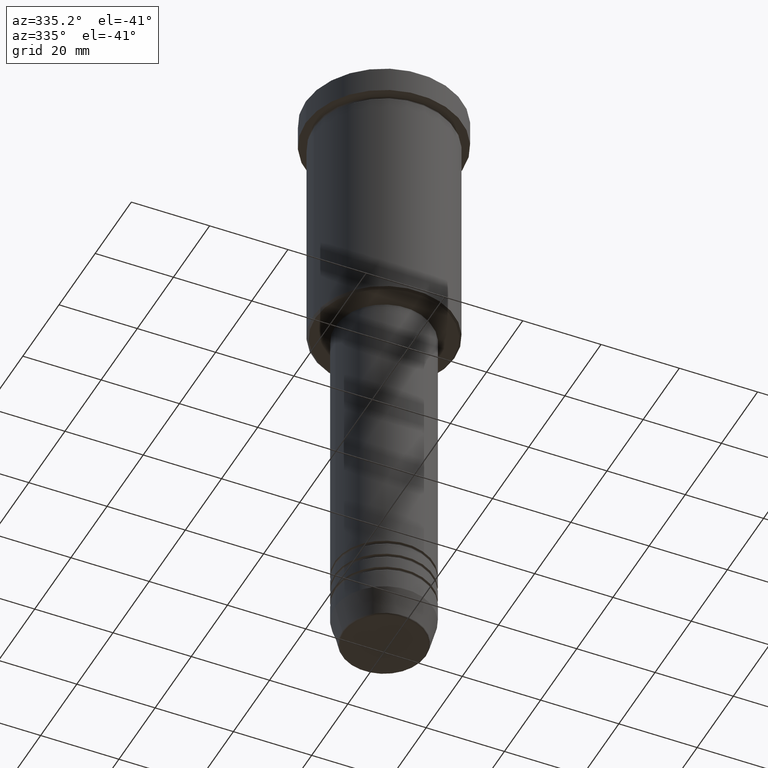
[diagram: clean part render]
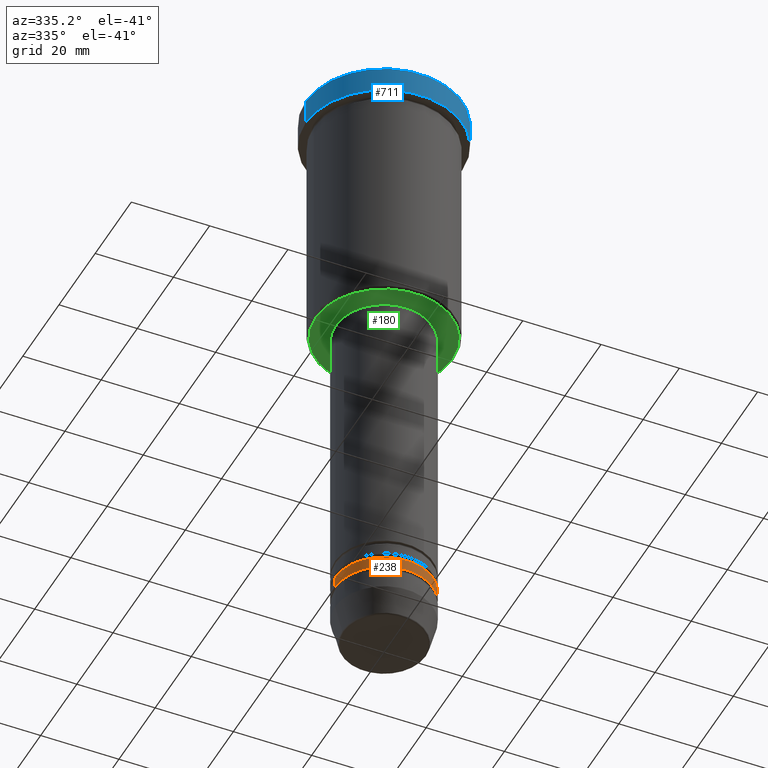
[diagram: same view with three faces highlighted in distinct colors, each labeled with its STEP entity id]
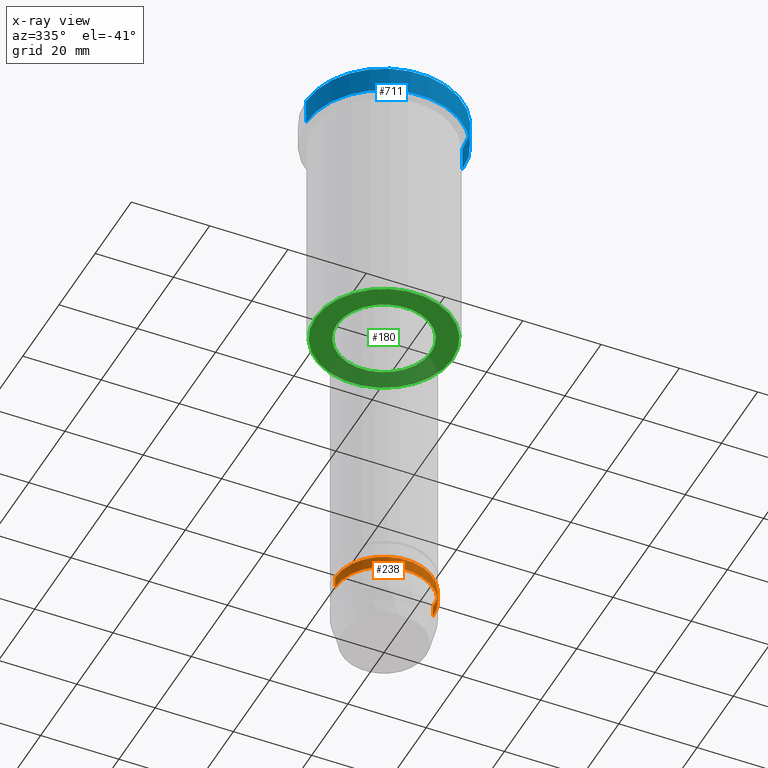
[diagram: x-ray of the same camera — body ghosted, the three highlighted faces saturated]
A machine part, auxiliary view with three faces highlighted in distinct colors.
The next image is the same camera in x-ray (body ghosted, the three faces saturated) — at least one of them is partly hidden behind the body in this view.
Their STEP definitions:

[orange] entity #238 — the highlighted cylindrical surface (partial cylindrical patch) has radius 12.5 mm, axis along (-0, -0, 1).
#19 = FACE_OUTER_BOUND ( 'NONE', #1053, .T. ) ;
#26 = AXIS2_PLACEMENT_3D ( 'NONE', #48, #416, #1131 ) ;
#48 = CARTESIAN_POINT ( 'NONE',  ( 0.000000000000000000, 0.000000000000000000, -144.0000000000000000 ) ) ;
#115 = CYLINDRICAL_SURFACE ( 'NONE', #1088, 12.50000000000000000 ) ;
#136 = CARTESIAN_POINT ( 'NONE',  ( 12.50000000000000000, 0.000000000000000000, 0.000000000000000000 ) ) ;
#184 = VERTEX_POINT ( 'NONE', #514 ) ;
#208 = CIRCLE ( 'NONE', #26, 12.50000000000000000 ) ;
#235 = CARTESIAN_POINT ( 'NONE',  ( -12.50000000000000000, 1.530808498934191521E-15, -144.0000000000000000 ) ) ;
#238 = ADVANCED_FACE ( 'NONE', ( #19 ), #115, .T. ) ;
#272 = VECTOR ( 'NONE', #513, 1000.000000000000000 ) ;
#294 = CARTESIAN_POINT ( 'NONE',  ( 0.000000000000000000, 0.000000000000000000, -146.9999999999999716 ) ) ;
#319 = EDGE_CURVE ( 'NONE', #184, #381, #900, .T. ) ;
#349 = VERTEX_POINT ( 'NONE', #235 ) ;
#367 = ORIENTED_EDGE ( 'NONE', *, *, #484, .F. ) ;
#381 = VERTEX_POINT ( 'NONE', #980 ) ;
#397 = AXIS2_PLACEMENT_3D ( 'NONE', #294, #919, #673 ) ;
#416 = DIRECTION ( 'NONE',  ( -0.000000000000000000, -0.000000000000000000, 1.000000000000000000 ) ) ;
#444 = CARTESIAN_POINT ( 'NONE',  ( -12.50000000000000000, 1.530808498934191521E-15, 0.000000000000000000 ) ) ;
#484 = EDGE_CURVE ( 'NONE', #184, #349, #876, .T. ) ;
#513 = DIRECTION ( 'NONE',  ( -0.000000000000000000, -0.000000000000000000, 1.000000000000000000 ) ) ;
#514 = CARTESIAN_POINT ( 'NONE',  ( -12.50000000000000000, 1.530808498934191521E-15, -146.9999999999999716 ) ) ;
#538 = DIRECTION ( 'NONE',  ( -0.000000000000000000, -0.000000000000000000, 1.000000000000000000 ) ) ;
#547 = CARTESIAN_POINT ( 'NONE',  ( 12.50000000000000000, 0.000000000000000000, -144.0000000000000000 ) ) ;
#558 = EDGE_CURVE ( 'NONE', #349, #567, #208, .T. ) ;
#567 = VERTEX_POINT ( 'NONE', #547 ) ;
#585 = LINE ( 'NONE', #136, #272 ) ;
#663 = DIRECTION ( 'NONE',  ( -0.000000000000000000, -0.000000000000000000, 1.000000000000000000 ) ) ;
#673 = DIRECTION ( 'NONE',  ( 1.000000000000000000, 0.000000000000000000, 0.000000000000000000 ) ) ;
#749 = EDGE_CURVE ( 'NONE', #381, #567, #585, .T. ) ;
#833 = ORIENTED_EDGE ( 'NONE', *, *, #319, .T. ) ;
#835 = DIRECTION ( 'NONE',  ( 1.000000000000000000, 0.000000000000000000, 0.000000000000000000 ) ) ;
#858 = VECTOR ( 'NONE', #538, 1000.000000000000000 ) ;
#876 = LINE ( 'NONE', #444, #858 ) ;
#900 = CIRCLE ( 'NONE', #397, 12.50000000000000000 ) ;
#919 = DIRECTION ( 'NONE',  ( -0.000000000000000000, -0.000000000000000000, 1.000000000000000000 ) ) ;
#980 = CARTESIAN_POINT ( 'NONE',  ( 12.50000000000000000, 0.000000000000000000, -146.9999999999999716 ) ) ;
#1053 = EDGE_LOOP ( 'NONE', ( #367, #833, #1073, #1058 ) ) ;
#1058 = ORIENTED_EDGE ( 'NONE', *, *, #558, .F. ) ;
#1073 = ORIENTED_EDGE ( 'NONE', *, *, #749, .T. ) ;
#1088 = AXIS2_PLACEMENT_3D ( 'NONE', #1102, #663, #835 ) ;
#1102 = CARTESIAN_POINT ( 'NONE',  ( 0.000000000000000000, 0.000000000000000000, 0.000000000000000000 ) ) ;
#1131 = DIRECTION ( 'NONE',  ( 1.000000000000000000, 0.000000000000000000, 0.000000000000000000 ) ) ;

[blue] entity #711 — the highlighted cylindrical surface (partial cylindrical patch) has radius 20 mm, axis along (-0, -0, 1).
#12 = VERTEX_POINT ( 'NONE', #304 ) ;
#41 = CARTESIAN_POINT ( 'NONE',  ( -20.00000000000000000, 2.449293598294706513E-15, 0.000000000000000000 ) ) ;
#43 = CYLINDRICAL_SURFACE ( 'NONE', #885, 20.00000000000000000 ) ;
#58 = CARTESIAN_POINT ( 'NONE',  ( 0.000000000000000000, 0.000000000000000000, 0.000000000000000000 ) ) ;
#81 = DIRECTION ( 'NONE',  ( 1.000000000000000000, 0.000000000000000000, 0.000000000000000000 ) ) ;
#116 = VERTEX_POINT ( 'NONE', #883 ) ;
#147 = ORIENTED_EDGE ( 'NONE', *, *, #977, .T. ) ;
#150 = ORIENTED_EDGE ( 'NONE', *, *, #790, .T. ) ;
#152 = EDGE_LOOP ( 'NONE', ( #896, #147, #150, #354 ) ) ;
#174 = CARTESIAN_POINT ( 'NONE',  ( 0.000000000000000000, 0.000000000000000000, -0.5000000000000525135 ) ) ;
#181 = DIRECTION ( 'NONE',  ( -0.000000000000000000, -0.000000000000000000, 1.000000000000000000 ) ) ;
#198 = CARTESIAN_POINT ( 'NONE',  ( -20.00000000000000000, 2.449293598294706513E-15, -0.5000000000000525135 ) ) ;
#211 = AXIS2_PLACEMENT_3D ( 'NONE', #174, #240, #81 ) ;
#240 = DIRECTION ( 'NONE',  ( 0.000000000000000000, 0.000000000000000000, -1.000000000000000000 ) ) ;
#304 = CARTESIAN_POINT ( 'NONE',  ( 20.00000000000000000, 0.000000000000000000, -6.999999999999995559 ) ) ;
#322 = VECTOR ( 'NONE', #1052, 1000.000000000000000 ) ;
#354 = ORIENTED_EDGE ( 'NONE', *, *, #798, .T. ) ;
#357 = CIRCLE ( 'NONE', #211, 20.00000000000000000 ) ;
#373 = VECTOR ( 'NONE', #1135, 1000.000000000000000 ) ;
#378 = AXIS2_PLACEMENT_3D ( 'NONE', #808, #181, #910 ) ;
#424 = CARTESIAN_POINT ( 'NONE',  ( 20.00000000000000000, 0.000000000000000000, 0.000000000000000000 ) ) ;
#426 = EDGE_CURVE ( 'NONE', #955, #715, #768, .T. ) ;
#466 = DIRECTION ( 'NONE',  ( 1.000000000000000000, 0.000000000000000000, 0.000000000000000000 ) ) ;
#515 = DIRECTION ( 'NONE',  ( -0.000000000000000000, -0.000000000000000000, 1.000000000000000000 ) ) ;
#645 = CARTESIAN_POINT ( 'NONE',  ( -20.00000000000000000, 2.449293598294706513E-15, -6.999999999999995559 ) ) ;
#711 = ADVANCED_FACE ( 'NONE', ( #862 ), #43, .T. ) ;
#715 = VERTEX_POINT ( 'NONE', #198 ) ;
#768 = LINE ( 'NONE', #41, #373 ) ;
#790 = EDGE_CURVE ( 'NONE', #12, #116, #983, .T. ) ;
#798 = EDGE_CURVE ( 'NONE', #116, #715, #357, .T. ) ;
#808 = CARTESIAN_POINT ( 'NONE',  ( 0.000000000000000000, 0.000000000000000000, -6.999999999999995559 ) ) ;
#862 = FACE_OUTER_BOUND ( 'NONE', #152, .T. ) ;
#883 = CARTESIAN_POINT ( 'NONE',  ( 20.00000000000000000, 0.000000000000000000, -0.5000000000000525135 ) ) ;
#885 = AXIS2_PLACEMENT_3D ( 'NONE', #58, #515, #466 ) ;
#887 = CIRCLE ( 'NONE', #378, 20.00000000000000000 ) ;
#896 = ORIENTED_EDGE ( 'NONE', *, *, #426, .F. ) ;
#910 = DIRECTION ( 'NONE',  ( 1.000000000000000000, 0.000000000000000000, 0.000000000000000000 ) ) ;
#955 = VERTEX_POINT ( 'NONE', #645 ) ;
#977 = EDGE_CURVE ( 'NONE', #955, #12, #887, .T. ) ;
#983 = LINE ( 'NONE', #424, #322 ) ;
#1052 = DIRECTION ( 'NONE',  ( -0.000000000000000000, -0.000000000000000000, 1.000000000000000000 ) ) ;
#1135 = DIRECTION ( 'NONE',  ( -0.000000000000000000, -0.000000000000000000, 1.000000000000000000 ) ) ;

[green] entity #180 — the highlighted planar face has unit normal (0, 0, -1).
#37 = CARTESIAN_POINT ( 'NONE',  ( 17.50000000000001421, 0.000000000000000000, -66.00000000000000000 ) ) ;
#51 = PLANE ( 'NONE',  #677 ) ;
#53 = DIRECTION ( 'NONE',  ( 0.000000000000000000, 0.000000000000000000, -1.000000000000000000 ) ) ;
#96 = VERTEX_POINT ( 'NONE', #767 ) ;
#103 = ORIENTED_EDGE ( 'NONE', *, *, #660, .T. ) ;
#126 = CIRCLE ( 'NONE', #1033, 17.50000000000001421 ) ;
#180 = ADVANCED_FACE ( 'NONE', ( #1114, #705 ), #51, .T. ) ;
#258 = CARTESIAN_POINT ( 'NONE',  ( 0.000000000000000000, 0.000000000000000000, -66.00000000000000000 ) ) ;
#344 = DIRECTION ( 'NONE',  ( -0.000000000000000000, -0.000000000000000000, 1.000000000000000000 ) ) ;
#368 = DIRECTION ( 'NONE',  ( 1.000000000000000000, 0.000000000000000000, 0.000000000000000000 ) ) ;
#398 = AXIS2_PLACEMENT_3D ( 'NONE', #875, #422, #1134 ) ;
#422 = DIRECTION ( 'NONE',  ( 0.000000000000000000, 0.000000000000000000, -1.000000000000000000 ) ) ;
#427 = EDGE_CURVE ( 'NONE', #713, #610, #126, .T. ) ;
#437 = VERTEX_POINT ( 'NONE', #1027 ) ;
#447 = ORIENTED_EDGE ( 'NONE', *, *, #878, .T. ) ;
#456 = CIRCLE ( 'NONE', #520, 12.00000000000000000 ) ;
#499 = CIRCLE ( 'NONE', #398, 17.50000000000001421 ) ;
#520 = AXIS2_PLACEMENT_3D ( 'NONE', #258, #344, #728 ) ;
#526 = CARTESIAN_POINT ( 'NONE',  ( 0.000000000000000000, 18.00000000000000000, -66.00000000000000000 ) ) ;
#607 = DIRECTION ( 'NONE',  ( 0.000000000000000000, 0.000000000000000000, -1.000000000000000000 ) ) ;
#610 = VERTEX_POINT ( 'NONE', #37 ) ;
#612 = CIRCLE ( 'NONE', #824, 12.00000000000000000 ) ;
#643 = CARTESIAN_POINT ( 'NONE',  ( -17.50000000000001421, 2.173748068486552430E-15, -66.00000000000000000 ) ) ;
#660 = EDGE_CURVE ( 'NONE', #610, #713, #499, .T. ) ;
#677 = AXIS2_PLACEMENT_3D ( 'NONE', #526, #607, #947 ) ;
#705 = FACE_BOUND ( 'NONE', #1158, .T. ) ;
#713 = VERTEX_POINT ( 'NONE', #643 ) ;
#728 = DIRECTION ( 'NONE',  ( 1.000000000000000000, 0.000000000000000000, 0.000000000000000000 ) ) ;
#767 = CARTESIAN_POINT ( 'NONE',  ( -12.00000000000000000, 1.469576158976823947E-15, -66.00000000000000000 ) ) ;
#777 = CARTESIAN_POINT ( 'NONE',  ( 0.000000000000000000, 0.000000000000000000, -66.00000000000000000 ) ) ;
#794 = EDGE_LOOP ( 'NONE', ( #103, #1095 ) ) ;
#814 = CARTESIAN_POINT ( 'NONE',  ( 0.000000000000000000, 0.000000000000000000, -66.00000000000000000 ) ) ;
#824 = AXIS2_PLACEMENT_3D ( 'NONE', #814, #1174, #368 ) ;
#875 = CARTESIAN_POINT ( 'NONE',  ( 0.000000000000000000, 0.000000000000000000, -66.00000000000000000 ) ) ;
#878 = EDGE_CURVE ( 'NONE', #437, #96, #456, .T. ) ;
#947 = DIRECTION ( 'NONE',  ( -1.000000000000000000, 0.000000000000000000, -0.000000000000000000 ) ) ;
#1027 = CARTESIAN_POINT ( 'NONE',  ( 12.00000000000000000, 0.000000000000000000, -66.00000000000000000 ) ) ;
#1033 = AXIS2_PLACEMENT_3D ( 'NONE', #777, #53, #1128 ) ;
#1071 = EDGE_CURVE ( 'NONE', #96, #437, #612, .T. ) ;
#1095 = ORIENTED_EDGE ( 'NONE', *, *, #427, .T. ) ;
#1114 = FACE_OUTER_BOUND ( 'NONE', #794, .T. ) ;
#1128 = DIRECTION ( 'NONE',  ( -1.000000000000000000, 0.000000000000000000, 0.000000000000000000 ) ) ;
#1134 = DIRECTION ( 'NONE',  ( -1.000000000000000000, 0.000000000000000000, 0.000000000000000000 ) ) ;
#1158 = EDGE_LOOP ( 'NONE', ( #447, #1181 ) ) ;
#1174 = DIRECTION ( 'NONE',  ( -0.000000000000000000, -0.000000000000000000, 1.000000000000000000 ) ) ;
#1181 = ORIENTED_EDGE ( 'NONE', *, *, #1071, .T. ) ;